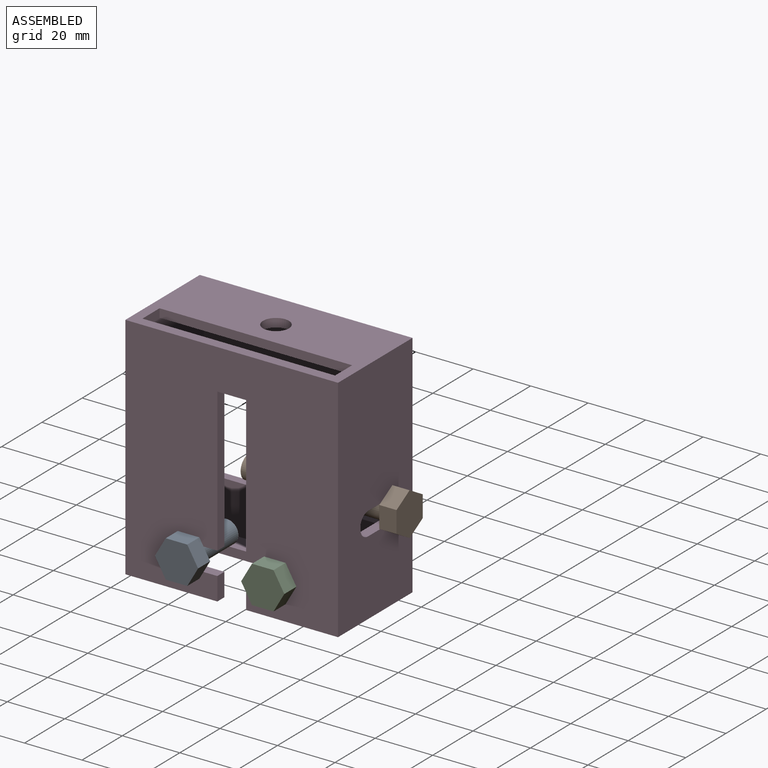
[diagram: assembled view]
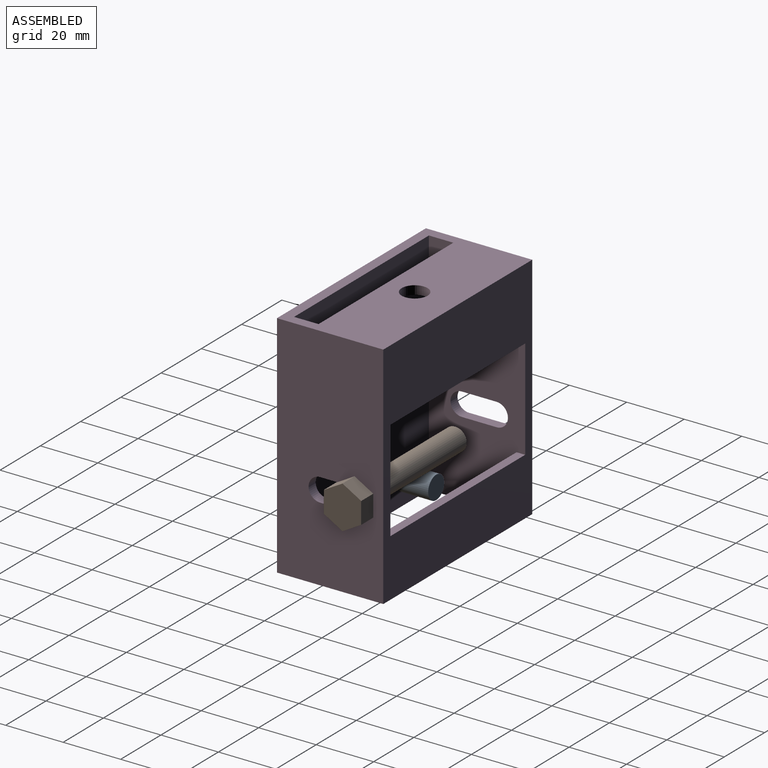
[diagram: assembled view, second angle]
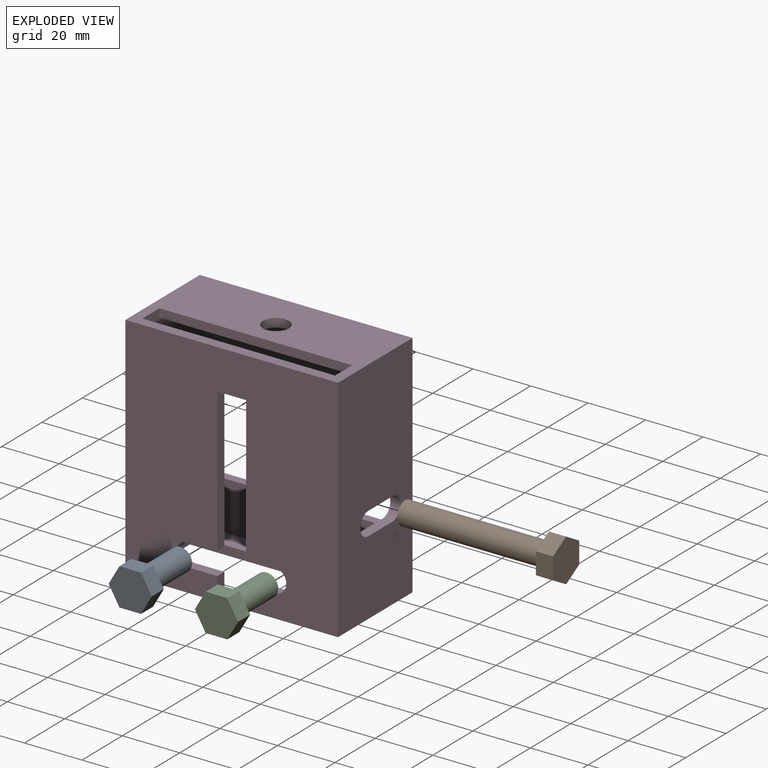
[diagram: exploded view]
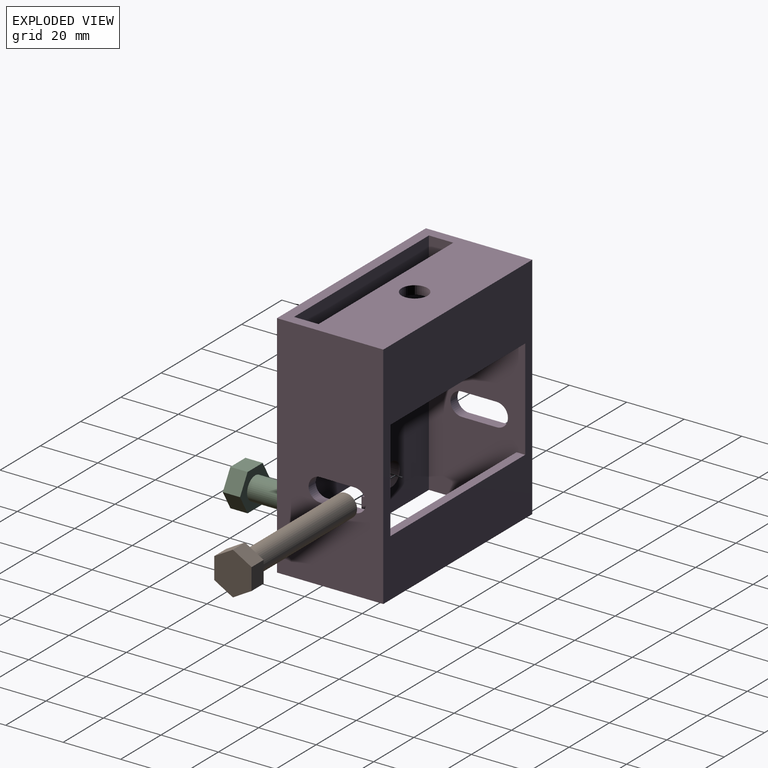
[diagram: exploded view, second angle]
ASSEMBLY  parts=4 mates=3
PART A: 10 faces, bbox 15x13x25 mm
  f0: plane 7.51x6mm, normal (0,-1,0), area 45mm2, adj f1,f5,f6,f7
  f1: plane 6.5x6mm, normal (0.87,-0.5,0), area 45mm2, adj f0,f2,f6,f7
  f2: plane 6.5x6mm, normal (0.87,0.5,0), area 45mm2, adj f1,f3,f6,f7
  f3: plane 7.51x6mm, normal (0,1,0), area 45mm2, adj f2,f4,f6,f7
  f4: plane 6.5x6mm, normal (-0.87,0.5,0), area 45mm2, adj f3,f5,f6,f7
  f5: plane 6.5x6mm, normal (-0.87,-0.5,0), area 45mm2, adj f0,f4,f6,f7
  f6: plane 15.01x13mm, normal (0,0,1), area 96.1mm2, adj f0,f1,f2,f3,f4,f5,f8
  f7: plane 15.01x13mm, normal (0,0,-1), area 146.4mm2, adj f0,f1,f2,f3,f4,f5
  f8: cylinder r=4mm len=19mm, axis (0,0,-1), area 477.5mm2, adj f6,f9
  f9: plane 8x8mm, normal (0,0,1), area 50.3mm2, adj f8
PART B: 10 faces, bbox 15x13x56 mm
  f0: plane 7.51x6mm, normal (0,-1,0), area 45mm2, adj f1,f5,f6,f7
  f1: plane 6.5x6mm, normal (0.87,-0.5,0), area 45mm2, adj f0,f2,f6,f7
  f2: plane 6.5x6mm, normal (0.87,0.5,0), area 45mm2, adj f1,f3,f6,f7
  f3: plane 7.51x6mm, normal (0,1,0), area 45mm2, adj f2,f4,f6,f7
  f4: plane 6.5x6mm, normal (-0.87,0.5,0), area 45mm2, adj f3,f5,f6,f7
  f5: plane 6.5x6mm, normal (-0.87,-0.5,0), area 45mm2, adj f0,f4,f6,f7
  f6: plane 15.01x13mm, normal (0,0,1), area 96.1mm2, adj f0,f1,f2,f3,f4,f5,f8
  f7: plane 15.01x13mm, normal (0,0,-1), area 146.4mm2, adj f0,f1,f2,f3,f4,f5
  f8: cylinder r=4mm len=50mm, axis (0,0,-1), area 1256.6mm2, adj f6,f9
  f9: plane 8x8mm, normal (0,0,1), area 50.3mm2, adj f8
PART C: same geometry as A
PART D: 37 faces, bbox 74x37x80 mm
  f0: plane 80x33.5mm, normal (1,0,0), area 2311.7mm2, adj f2,f3,f5,f6,f13,f14,f15,f16
  f1: plane 80x37mm, normal (-1,0,0), area 2813.7mm2, adj f3,f4,f5,f6,f13,f14,f15,f16
  f2: plane 80x67mm, normal (0,1,0), area 4489.7mm2, adj f0,f5,f6,f7,f8,f9,f10,f11
  f3: plane 80x74mm, normal (0,1,0), area 3575mm2, adj f0,f1,f5,f6,f17,f18,f28,f33
  f4: plane 80x74mm, normal (0,-1,0), area 5049.7mm2, adj f1,f5,f6,f7,f8,f9,f10,f11
  f5: plane 74x37mm, normal (0,0,1), area 2104.9mm2, adj f0,f1,f2,f3,f4,f17,f18,f29
  f6: plane 74x37mm, normal (0,0,-1), area 1128.5mm2, adj f0,f1,f2,f3,f4,f12,f17,f18
  f7: plane 10x3.5mm, normal (0,0,-1), area 35mm2, adj f2,f4,f8,f22
  f8: plane 50x3.5mm, normal (1,0,0), area 175mm2, adj f2,f4,f7,f9
  f9: plane 10x3.5mm, normal (0,0,-1), area 35mm2, adj f2,f4,f8,f10
  f10: cylinder r=4mm len=8mm, axis (0,-1,0), area 44mm2, adj f2,f4,f9,f11
  f11: plane 10x3.5mm, normal (0,0,1), area 35mm2, adj f2,f4,f10,f12
  f12: plane 8x3.5mm, normal (1,0,0), area 28mm2, adj f2,f4,f6,f11
  f13: plane 12x3.5mm, normal (0,0,1), area 42mm2, adj f0,f1,f14,f16
  f14: cylinder r=4mm len=8mm, axis (1,0,0), area 44mm2, adj f0,f1,f13,f15
  f15: plane 12x3.5mm, normal (0,0,-1), area 42mm2, adj f0,f1,f14,f16
  f16: cylinder r=4mm len=8mm, axis (1,0,0), area 44mm2, adj f0,f1,f13,f15
  f17: plane 80x37mm, normal (1,0,0), area 2813.7mm2, adj f3,f4,f5,f6,f24,f25,f26,f27
  f18: plane 80x33.5mm, normal (-1,0,0), area 2311.7mm2, adj f2,f3,f5,f6,f24,f25,f26,f27
  f19: plane 10x3.5mm, normal (0,0,1), area 35mm2, adj f2,f4,f20,f23
  f20: cylinder r=4mm len=8mm, axis (0,-1,0), area 44mm2, adj f2,f4,f19,f21
  f21: plane 10x3.5mm, normal (0,0,-1), area 35mm2, adj f2,f4,f20,f22
  f22: plane 50x3.5mm, normal (-1,0,0), area 175mm2, adj f2,f4,f7,f21
  f23: plane 8x3.5mm, normal (-1,0,0), area 28mm2, adj f2,f4,f6,f19
  f24: plane 12x3.5mm, normal (0,0,1), area 42mm2, adj f17,f18,f25,f27
  f25: cylinder r=4mm len=8mm, axis (1,0,0), area 44mm2, adj f17,f18,f24,f26
  f26: plane 12x3.5mm, normal (0,0,-1), area 42mm2, adj f17,f18,f25,f27
  f27: cylinder r=4mm len=8mm, axis (1,0,0), area 44mm2, adj f17,f18,f24,f26
  f28: plane 67x3mm, normal (0,0,-1), area 201mm2, adj f0,f3,f18,f30
  f29: plane 67x3mm, normal (0,-1,0), area 201mm2, adj f0,f5,f18,f31
  f30: plane 67x22mm, normal (0,-1,0), area 1474mm2, adj f0,f18,f28,f31
  f31: plane 67x22mm, normal (0,0,-1), area 1410.4mm2, adj f0,f18,f29,f30,f32
  f32: cylinder r=4.5mm len=9mm, axis (0,0,1), area 84.8mm2, adj f5,f31
  f33: plane 67x3mm, normal (0,0,1), area 201mm2, adj f0,f3,f18,f34
  f34: plane 67x17mm, normal (0,-1,0), area 1139mm2, adj f0,f18,f33,f35
  f35: plane 67x7mm, normal (0,0,1), area 469mm2, adj f0,f18,f34,f36
  f36: plane 67x3mm, normal (0,-1,0), area 201mm2, adj f0,f6,f18,f35
PLACE A rot(axis=(-1,0,0),90deg) t=(151.3,-39.49,-115.4)mm
PLACE B rot(axis=(0,-1,0),90deg) t=(0.5,208.06,292.44)mm
PLACE C rot(axis=(-1,0,0),90deg) t=(181.3,-39.49,-115.4)mm
PLACE D t=(-42.5,-33.49,66.84)mm fixed
MATE pin_slot D.f14 <-> B.f8  axis (1,0,0) through (-5.5,-6.49,96.84)mm
MATE pin_slot D.f10 <-> A.f8  axis (0,-1,0) through (-57.5,-33.49,78.84)mm
MATE pin_slot D.f20 <-> C.f8  axis (0,-1,0) through (-27.5,-33.49,78.84)mm
